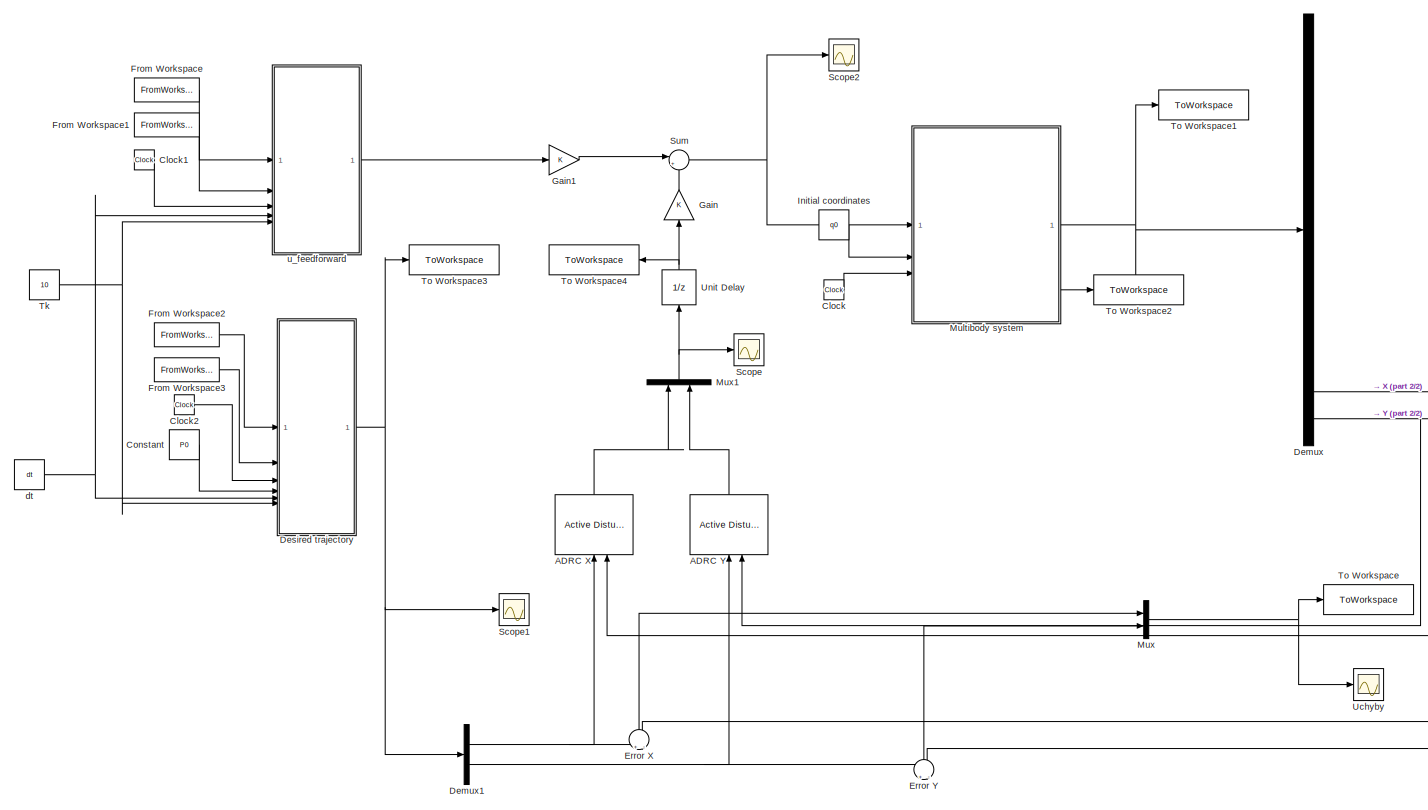
[diagram: root canvas - part 1/2, most of the canvas]
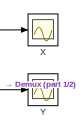
[diagram: root canvas - part 2/2, middle right region]
MODEL slx_751145bcf6ba
KIND model
CONFIG AbsTol = auto
CONFIG EnableMultiTasking = off
CONFIG FixedStep = 0.005
CONFIG MaxStep = auto
CONFIG MinStep = auto
CONFIG RelTol = 1e-3
CONFIG SampleTimeConstraint = Unconstrained
CONFIG SolverName = ode1be
CONFIG StartTime = 0.0
CONFIG StopTime = 10
BLOCK [Reference] ADRC X  REF=slctrl_adaptive/Active Disturbance Rejection Control
  LibrarySourceBlock = slctrlblks/Adaptive Control/Active Disturbance Rejection Control
  NameLocation = right
  SourceBlock = slctrl_adaptive/Active Disturbance Rejection Control
  SourceType = Active Disturbance Rejection Control (ADRC)
BLOCK [Reference] ADRC Y  REF=slctrl_adaptive/Active Disturbance Rejection Control
  LibrarySourceBlock = slctrlblks/Adaptive Control/Active Disturbance Rejection Control
  NameLocation = right
  SourceBlock = slctrl_adaptive/Active Disturbance Rejection Control
  SourceType = Active Disturbance Rejection Control (ADRC)
BLOCK [Clock] Clock
BLOCK [Clock] Clock1
BLOCK [Clock] Clock2
BLOCK [Constant] Constant
  Value = P0
BLOCK [Demux] Demux
  Outputs = 15
BLOCK [Demux] Demux1
  Outputs = 2
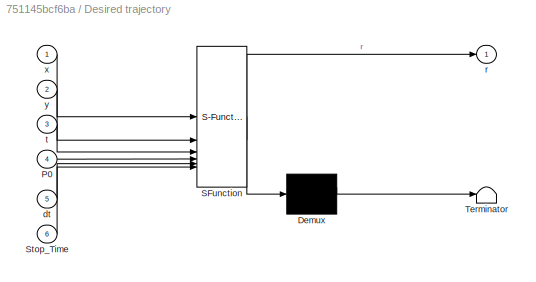
BLOCK [SubSystem] Desired trajectory
  ErrorFcn = Stateflow.Translate.translate
  PermitHierarchicalResolution = ExplicitOnly
  SFBlockType = MATLAB Function
  TreatAsAtomicUnit = on
BLOCK [Demux] Desired trajectory/ Demux 
  Outputs = 1
BLOCK [S-Function] Desired trajectory/ SFunction 
  EnableBusSupport = on
  FunctionName = sf_sfun
  PortCounts = [6 2]
  SFcnIsStateOwnerBlock = off
  SFunctionDeploymentMode = off
  Tag = Stateflow S-Function 2
BLOCK [Terminator] Desired trajectory/ Terminator 
BLOCK [Inport] Desired trajectory/P0
  Port = 4
BLOCK [Inport] Desired trajectory/Stop_Time
  Port = 6
BLOCK [Inport] Desired trajectory/dt
  Port = 5
BLOCK [Outport] Desired trajectory/r
BLOCK [Inport] Desired trajectory/t
  Port = 3
BLOCK [Inport] Desired trajectory/x
BLOCK [Inport] Desired trajectory/y
  Port = 2
BLOCK [Sum] Error X
  Inputs = +|-
  NameLocation = right
BLOCK [Sum] Error Y
  Inputs = +|-
  NameLocation = right
BLOCK [FromWorkspace] From Workspace
  OutDataTypeStr = double
  SampleTime = 0.01
  VariableName = u1
BLOCK [FromWorkspace] From Workspace1
  VariableName = u2
BLOCK [FromWorkspace] From Workspace2
  VariableName = x_traj
BLOCK [FromWorkspace] From Workspace3
  VariableName = y_traj
BLOCK [Gain] Gain
  NameLocation = right
BLOCK [Gain] Gain1
BLOCK [Constant] Initial coordinates
  Value = q0
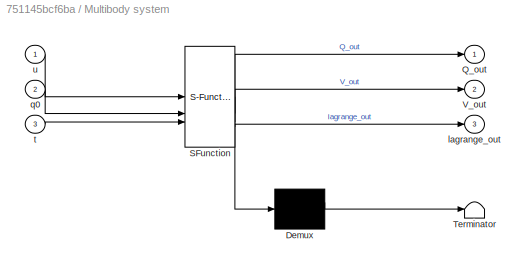
BLOCK [SubSystem] Multibody system
  ErrorFcn = Stateflow.Translate.translate
  PermitHierarchicalResolution = ExplicitOnly
  SFBlockType = MATLAB Function
  TreatAsAtomicUnit = on
BLOCK [Demux] Multibody system/ Demux 
  Outputs = 1
BLOCK [S-Function] Multibody system/ SFunction 
  EnableBusSupport = on
  FunctionName = sf_sfun
  PortCounts = [3 4]
  SFcnIsStateOwnerBlock = off
  SFunctionDeploymentMode = off
  Tag = Stateflow S-Function 3
BLOCK [Terminator] Multibody system/ Terminator 
BLOCK [Outport] Multibody system/Q_out
BLOCK [Outport] Multibody system/V_out
  Port = 2
BLOCK [Outport] Multibody system/lagrange_out
  Port = 3
BLOCK [Inport] Multibody system/q0
  Port = 2
BLOCK [Inport] Multibody system/t
  Port = 3
BLOCK [Inport] Multibody system/u
BLOCK [Mux] Mux
  DisplayOption = bar
  Inputs = 2
BLOCK [Mux] Mux1
  DisplayOption = bar
  Inputs = 2
  NameLocation = right
BLOCK [Scope] Scope
  Floating = off
  NumInputPorts = 1
  ScopeSpecificationString = Simulink.scopes.TimeScopeBlockCfg('CurrentConfiguration', extmgr.ConfigurationSet(extmgr.Configuration('Core','General UI',true),extmgr.Configuration('Core','Source UI',true),extmgr.Configuration('Sources','WiredSimulink',true,'DataLoggingVariableName','ScopeData1'),extmgr.Configuration('Visuals','Time Domain',true,'SerializedDisplays',{struct('MinYLimReal','-0.000015','MaxYLimReal','0.000012','YL...<+1504ch>
BLOCK [Scope] Scope1
  Floating = off
  NumInputPorts = 1
  ScopeSpecificationString = Simulink.scopes.TimeScopeBlockCfg('CurrentConfiguration', extmgr.ConfigurationSet(extmgr.Configuration('Core','General UI',true),extmgr.Configuration('Core','Source UI',true),extmgr.Configuration('Sources','WiredSimulink',true,'DataLoggingVariableName','ScopeData1'),extmgr.Configuration('Visuals','Time Domain',true,'SerializedDisplays',{struct('MinYLimReal','-0.16192','MaxYLimReal','0.18733','YLab...<+1520ch>
BLOCK [Scope] Scope2
  Floating = off
  NumInputPorts = 1
  ScopeSpecificationString = Simulink.scopes.TimeScopeBlockCfg('CurrentConfiguration', extmgr.ConfigurationSet(extmgr.Configuration('Core','General UI',true),extmgr.Configuration('Core','Source UI',true),extmgr.Configuration('Sources','WiredSimulink',true,'DataLoggingVariableName','ScopeData1'),extmgr.Configuration('Visuals','Time Domain',true,'SerializedDisplays',{struct('MinYLimReal','-0.00638','MaxYLimReal','0.00685','YLab...<+1491ch>
BLOCK [Sum] Sum
  Inputs = |++
BLOCK [Constant] Tk
  Value = 10
BLOCK [ToWorkspace] To Workspace
  FixptAsFi = on
  MaxDataPoints = inf
  SampleTime = -1
  SaveFormat = Timeseries
  VariableName = error_fb_ffw
BLOCK [ToWorkspace] To Workspace1
  FixptAsFi = on
  MaxDataPoints = inf
  SampleTime = -1
  SaveFormat = Timeseries
  VariableName = coordinates
BLOCK [ToWorkspace] To Workspace2
  FixptAsFi = on
  MaxDataPoints = inf
  SampleTime = -1
  SaveFormat = Timeseries
  VariableName = lagrange
BLOCK [ToWorkspace] To Workspace3
  FixptAsFi = on
  MaxDataPoints = inf
  SampleTime = -1
  SaveFormat = Timeseries
  VariableName = trajectory
BLOCK [ToWorkspace] To Workspace4
  FixptAsFi = on
  MaxDataPoints = inf
  NameLocation = top
  SampleTime = -1
  SaveFormat = Timeseries
  VariableName = u_feedback
BLOCK [Scope] Uchyby
  Floating = off
  NumInputPorts = 1
  ScopeSpecificationString = Simulink.scopes.TimeScopeBlockCfg('CurrentConfiguration', extmgr.ConfigurationSet(extmgr.Configuration('Core','General UI',true),extmgr.Configuration('Core','Source UI',true),extmgr.Configuration('Sources','WiredSimulink',true,'DataLoggingVariableName','ScopeData1'),extmgr.Configuration('Visuals','Time Domain',true,'SerializedDisplays',{struct('MinYLimReal','-0.01959','MaxYLimReal','0.01095','YLab...<+1511ch>
BLOCK [UnitDelay] Unit Delay
  HasFrameUpgradeWarning = on
  NameLocation = right
  SampleTime = -1
BLOCK [Scope] X
  Floating = off
  NumInputPorts = 1
  ScopeSpecificationString = Simulink.scopes.TimeScopeBlockCfg('CurrentConfiguration', extmgr.ConfigurationSet(extmgr.Configuration('Core','General UI',true),extmgr.Configuration('Core','Source UI',true),extmgr.Configuration('Sources','WiredSimulink',true,'DataLoggingVariableName','ScopeData5'),extmgr.Configuration('Visuals','Time Domain',true,'SerializedDisplays',{struct('MinYLimReal','0.10039','MaxYLimReal','0.1632','YLabel...<+1480ch>
BLOCK [Scope] Y
  Floating = off
  NumInputPorts = 1
  ScopeSpecificationString = Simulink.scopes.TimeScopeBlockCfg('CurrentConfiguration', extmgr.ConfigurationSet(extmgr.Configuration('Core','General UI',true),extmgr.Configuration('Core','Source UI',true),extmgr.Configuration('Sources','WiredSimulink',true,'DataLoggingVariableName','ScopeData6'),extmgr.Configuration('Visuals','Time Domain',true,'SerializedDisplays',{struct('MinYLimReal','-0.13649','MaxYLimReal','-0.0775','YLab...<+1485ch>
BLOCK [Constant] dt
  Value = dt
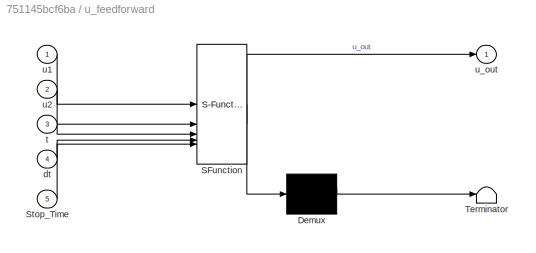
BLOCK [SubSystem] u_feedforward
  ErrorFcn = Stateflow.Translate.translate
  PermitHierarchicalResolution = ExplicitOnly
  SFBlockType = MATLAB Function
  TreatAsAtomicUnit = on
BLOCK [Demux] u_feedforward/ Demux 
  Outputs = 1
BLOCK [S-Function] u_feedforward/ SFunction 
  EnableBusSupport = on
  FunctionName = sf_sfun
  PortCounts = [5 2]
  SFcnIsStateOwnerBlock = off
  SFunctionDeploymentMode = off
  Tag = Stateflow S-Function 4
BLOCK [Terminator] u_feedforward/ Terminator 
BLOCK [Inport] u_feedforward/Stop_Time
  Port = 5
BLOCK [Inport] u_feedforward/dt
  Port = 4
BLOCK [Inport] u_feedforward/t
  Port = 3
BLOCK [Inport] u_feedforward/u1
BLOCK [Inport] u_feedforward/u2
  Port = 2
BLOCK [Outport] u_feedforward/u_out
LINE ADRC X:1 -> Mux1:1
LINE ADRC Y:1 -> Mux1:2
LINE Clock1:1 -> u_feedforward:3
LINE Clock2:1 -> Desired trajectory:3
LINE Clock:1 -> Multibody system:3
LINE Constant:1 -> Desired trajectory:4
NET Demux1:1 -> ADRC X:1, Error X:1
NET Demux1:2 -> ADRC Y:1, Error Y:1
NET Demux:14 -> ADRC X:2, Error X:2, X:1
NET Demux:15 -> ADRC Y:2, Error Y:2, Y:1
NET Desired trajectory:1 -> Demux1:1, Scope1:1, To Workspace3:1
LINE Error X:1 -> Mux:1
LINE Error Y:1 -> Mux:2
LINE From Workspace1:1 -> u_feedforward:2
LINE From Workspace2:1 -> Desired trajectory:1
LINE From Workspace3:1 -> Desired trajectory:2
LINE From Workspace:1 -> u_feedforward:1
LINE Gain1:1 -> Sum:1
LINE Gain:1 -> Sum:2
LINE Initial coordinates:1 -> Multibody system:2
NET Multibody system:1 -> Demux:1, To Workspace1:1
LINE Multibody system:3 -> To Workspace2:1
NET Mux1:1 -> Scope:1, Unit Delay:1
NET Mux:1 -> To Workspace:1, Uchyby:1
NET Sum:1 -> Multibody system:1, Scope2:1
NET Tk:1 -> Desired trajectory:6, u_feedforward:5
NET Unit Delay:1 -> Gain:1, To Workspace4:1
NET dt:1 -> Desired trajectory:5, u_feedforward:4
LINE u_feedforward:1 -> Gain1:1
note: NET lines group one-source signal fan-out (src -> all destinations, sorted); 1:1 wires keep LINE
CHART Desired trajectory states=1 transitions=1
  STATE_LABEL 'eML_blk_kernel()'
  STATE_LABEL 'SCRIPT:\nfunction r = fcn(x, y, t,P0,dt, Stop_Time)\nif t == Stop_Time   \n    r = [P0(1);P0(2)];\nelse\n    r = [x(round(t*1/dt)+1); y(round(1/dt*t)+1)];\nend\n'
CHART Multibody system states=1 transitions=1
  STATE_LABEL 'eML_blk_kernel()'
  STATE_LABEL "SCRIPT:\nfunction [Q_out, V_out, lagrange_out] = Forward_Dynamics(u, q0, t)\nl = 0.127;\nL = l*2;\nm1 = 0.065;\nm2 = 0.5*m1;\nJ = 9.5e-5;\ng = 9.81;\nM = 1.2*diag([m1,m1,J, m1,m1,J, m1,m1,J, m1,m1,J, m2,m2,m2]);\n\nq0 = q0(1:13);\npersistent initial_guess;\n\nif isempty(initial_guess)\n        % Initialize at first call\n        initial_guess = [q0;l;-l; zeros(26,1)]; \nend\n\n\noptions = optimoptions('fsolve', 'Alg...<+3608ch>"
CHART u_feedforward states=1 transitions=1
  STATE_LABEL 'eML_blk_kernel()'
  STATE_LABEL 'SCRIPT:\nfunction u_out = fcn(u1, u2, t, dt,  Stop_Time)\nif t == Stop_Time\n    u_out = [0; 0];\nelse\nu_out = [u1(round(t*1/dt) + 1); u2(round(t*1/dt) + 1)];\nend\n'
CHART  states=0 transitions=0
CHART  states=0 transitions=0
CHART  states=0 transitions=0
